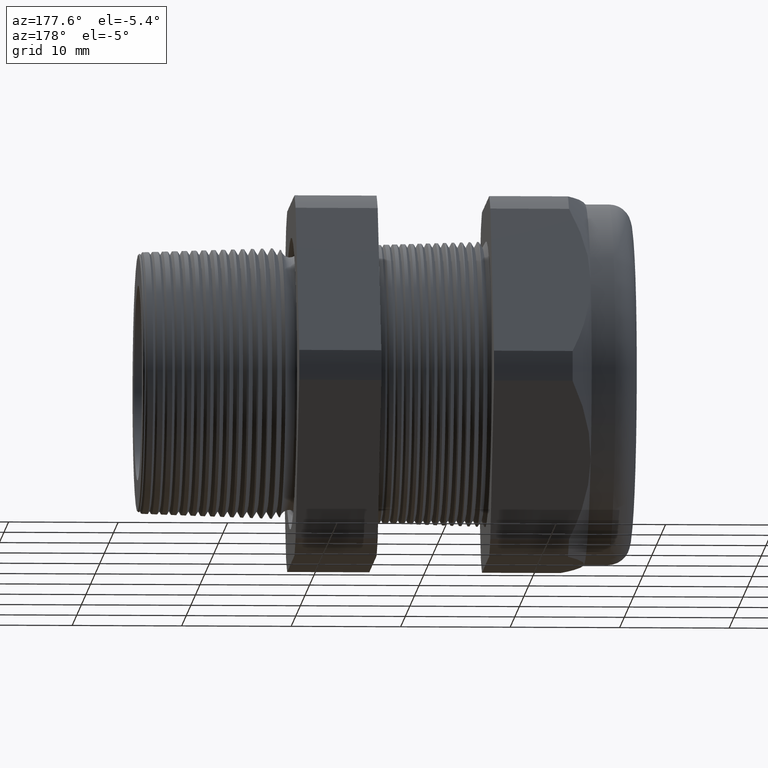
[diagram: clean part render]
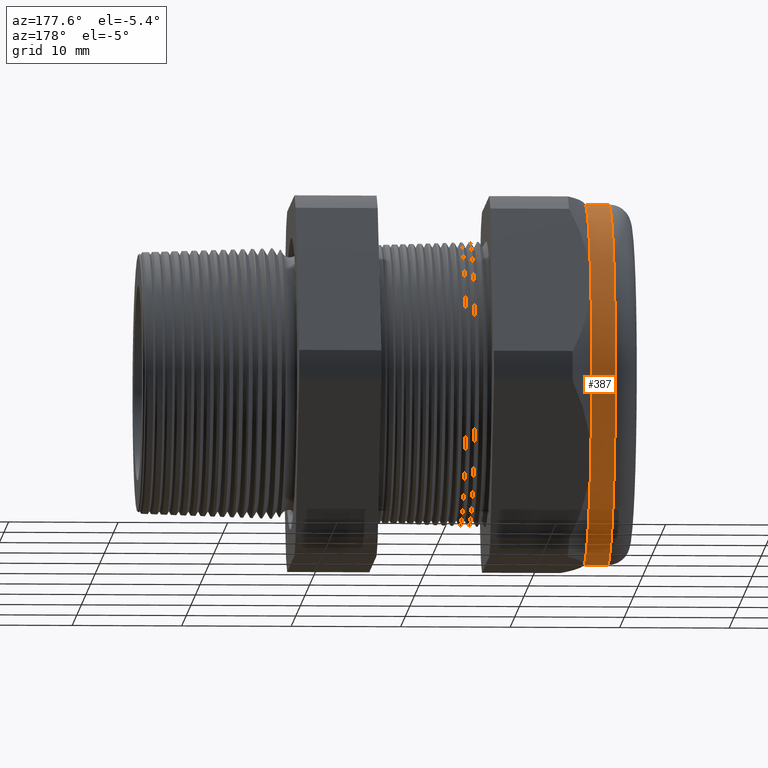
[diagram: same view with one face highlighted and labeled with its STEP entity id]
A machine part, auxiliary view. The second image highlights one B-rep face of the part: STEP entity #387.
In plain terms, the highlighted cylindrical surface (partial cylindrical patch) has radius 16.51 mm, axis along (1, 0, 0).
Its self-contained STEP definition (entity closure, byte-faithful):
#387 = ADVANCED_FACE ( 'NONE', ( #2128 ), #2127, .T. ) ;
#390 = EDGE_LOOP ( 'NONE', ( #391, #402, #5808, #429, #449, #445 ) ) ;
#391 = ORIENTED_EDGE ( 'NONE', *, *, #5731, .T. ) ;
#402 = ORIENTED_EDGE ( 'NONE', *, *, #5815, .T. ) ;
#429 = ORIENTED_EDGE ( 'NONE', *, *, #453, .F. ) ;
#442 = VERTEX_POINT ( 'NONE', #2176 ) ;
#443 = EDGE_CURVE ( 'NONE', #447, #442, #2224, .T. ) ;
#445 = ORIENTED_EDGE ( 'NONE', *, *, #446, .F. ) ;
#446 = EDGE_CURVE ( 'NONE', #5728, #447, #2219, .T. ) ;
#447 = VERTEX_POINT ( 'NONE', #2205 ) ;
#449 = ORIENTED_EDGE ( 'NONE', *, *, #443, .F. ) ;
#453 = EDGE_CURVE ( 'NONE', #442, #5812, #2256, .T. ) ;
#2122 = DIRECTION ( 'NONE',  ( 0.0000000000000000000, 0.0000000000000000000, -1.000000000000000000 ) ) ;
#2123 = DIRECTION ( 'NONE',  ( 1.000000000000000000, 0.0000000000000000000, 0.0000000000000000000 ) ) ;
#2124 = CARTESIAN_POINT ( 'NONE',  ( 0.0000000000000000000, 0.0000000000000000000, 0.0000000000000000000 ) ) ;
#2125 = AXIS2_PLACEMENT_3D ( 'NONE', #2124, #2123, #2122 ) ;
#2127 = CYLINDRICAL_SURFACE ( 'NONE', #2125, 0.6499999999999999100 ) ;
#2128 = FACE_OUTER_BOUND ( 'NONE', #390, .T. ) ;
#2165 = CARTESIAN_POINT ( 'NONE',  ( -1.364645669291338200, 0.0000000000000000000, 0.0000000000000000000 ) ) ;
#2176 = CARTESIAN_POINT ( 'NONE',  ( -1.364645669291338500, 0.5629165124598852800, -0.3249999999999997900 ) ) ;
#2205 = CARTESIAN_POINT ( 'NONE',  ( -1.364645669291338500, 0.0000000000000000000, -0.6500000000000001300 ) ) ;
#2216 = DIRECTION ( 'NONE',  ( 1.000000000000000000, 0.0000000000000000000, 0.0000000000000000000 ) ) ;
#2217 = VECTOR ( 'NONE', #2216, 39.37007874015748100 ) ;
#2218 = CARTESIAN_POINT ( 'NONE',  ( 0.0000000000000000000, 0.0000000000000000000, -0.6499999999999999100 ) ) ;
#2219 = LINE ( 'NONE', #2218, #2217 ) ;
#2221 = DIRECTION ( 'NONE',  ( 0.0000000000000000000, 0.0000000000000000000, -1.000000000000000000 ) ) ;
#2222 = DIRECTION ( 'NONE',  ( 1.000000000000000000, 0.0000000000000000000, 0.0000000000000000000 ) ) ;
#2223 = AXIS2_PLACEMENT_3D ( 'NONE', #2165, #2222, #2221 ) ;
#2224 = CIRCLE ( 'NONE', #2223, 0.6499999999999999100 ) ;
#2252 = DIRECTION ( 'NONE',  ( 0.0000000000000000000, 0.0000000000000000000, -1.000000000000000000 ) ) ;
#2253 = DIRECTION ( 'NONE',  ( 1.000000000000000000, 0.0000000000000000000, 0.0000000000000000000 ) ) ;
#2254 = CARTESIAN_POINT ( 'NONE',  ( -1.364645669291338200, 0.0000000000000000000, 0.0000000000000000000 ) ) ;
#2255 = AXIS2_PLACEMENT_3D ( 'NONE', #2254, #2253, #2252 ) ;
#2256 = CIRCLE ( 'NONE', #2255, 0.6499999999999999100 ) ;
#4156 = CARTESIAN_POINT ( 'NONE',  ( -1.449999999999999700, 7.960204194457794200E-017, 0.6499999999999999100 ) ) ;
#4207 = DIRECTION ( 'NONE',  ( 0.0000000000000000000, 0.0000000000000000000, 1.000000000000000000 ) ) ;
#4208 = DIRECTION ( 'NONE',  ( 1.000000000000000000, 0.0000000000000000000, 0.0000000000000000000 ) ) ;
#4209 = CARTESIAN_POINT ( 'NONE',  ( -1.449999999999999700, 0.0000000000000000000, 0.0000000000000000000 ) ) ;
#4210 = AXIS2_PLACEMENT_3D ( 'NONE', #4209, #4208, #4207 ) ;
#4211 = CIRCLE ( 'NONE', #4210, 0.6499999999999999100 ) ;
#4212 = CARTESIAN_POINT ( 'NONE',  ( -1.449999999999999700, 0.0000000000000000000, -0.6499999999999999100 ) ) ;
#4355 = DIRECTION ( 'NONE',  ( 1.000000000000000000, 0.0000000000000000000, 0.0000000000000000000 ) ) ;
#4356 = VECTOR ( 'NONE', #4355, 39.37007874015748100 ) ;
#4357 = CARTESIAN_POINT ( 'NONE',  ( 0.0000000000000000000, 7.960204194457794200E-017, 0.6499999999999999100 ) ) ;
#4358 = LINE ( 'NONE', #4357, #4356 ) ;
#4359 = CARTESIAN_POINT ( 'NONE',  ( -1.364645669291338500, 0.5629165124598855000, 0.3250000000000001800 ) ) ;
#4364 = DIRECTION ( 'NONE',  ( 0.0000000000000000000, 0.0000000000000000000, -1.000000000000000000 ) ) ;
#4365 = DIRECTION ( 'NONE',  ( 1.000000000000000000, 0.0000000000000000000, 0.0000000000000000000 ) ) ;
#4366 = CARTESIAN_POINT ( 'NONE',  ( -1.364645669291338200, 0.0000000000000000000, 0.0000000000000000000 ) ) ;
#4367 = AXIS2_PLACEMENT_3D ( 'NONE', #4366, #4365, #4364 ) ;
#4368 = CIRCLE ( 'NONE', #4367, 0.6499999999999999100 ) ;
#4369 = CARTESIAN_POINT ( 'NONE',  ( -1.364645669291338500, 0.0000000000000000000, 0.6499999999999999100 ) ) ;
#5723 = VERTEX_POINT ( 'NONE', #4156 ) ;
#5728 = VERTEX_POINT ( 'NONE', #4212 ) ;
#5731 = EDGE_CURVE ( 'NONE', #5728, #5723, #4211, .T. ) ;
#5807 = VERTEX_POINT ( 'NONE', #4369 ) ;
#5808 = ORIENTED_EDGE ( 'NONE', *, *, #5810, .F. ) ;
#5810 = EDGE_CURVE ( 'NONE', #5812, #5807, #4368, .T. ) ;
#5812 = VERTEX_POINT ( 'NONE', #4359 ) ;
#5815 = EDGE_CURVE ( 'NONE', #5723, #5807, #4358, .T. ) ;